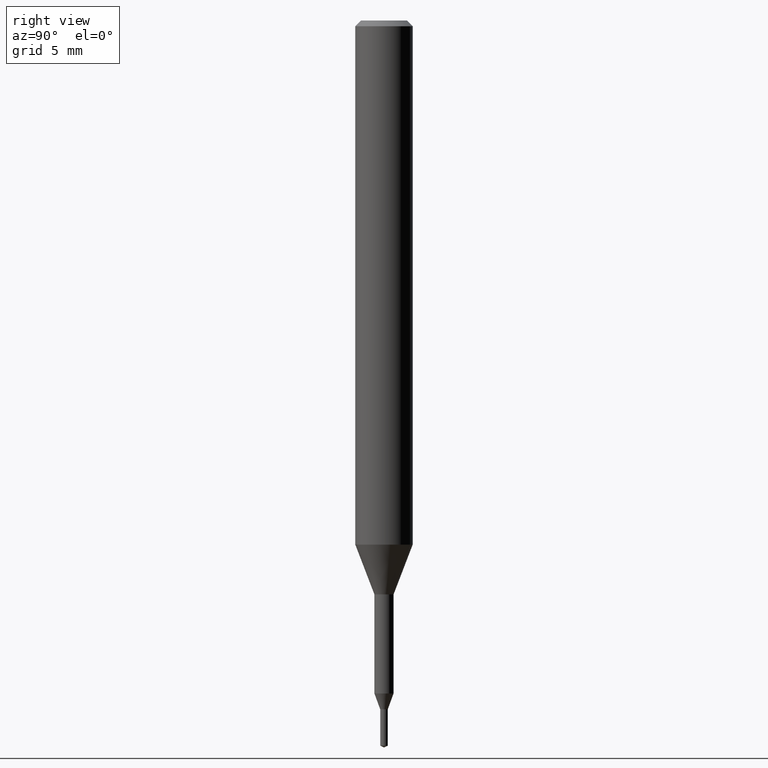
[diagram: clean part render]
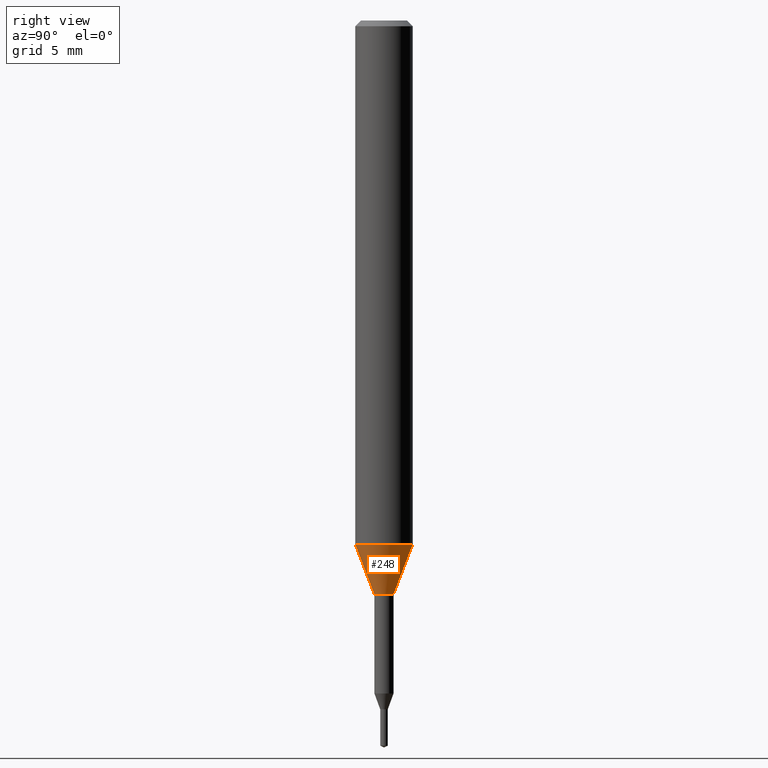
[diagram: same view with one face highlighted and labeled with its STEP entity id]
A machine part, right view. The second image highlights one B-rep face of the part: STEP entity #248.
In plain terms, the highlighted conical surface has half-angle 21.001 deg.
Its self-contained STEP definition (entity closure, byte-faithful):
#116=VERTEX_POINT('',#294);
#120=VERTEX_POINT('',#299);
#128=EDGE_CURVE('',#176,#116,#309,.T.);
#166=EDGE_CURVE('',#176,#120,#350,.T.);
#176=VERTEX_POINT('',#361);
#218=EDGE_CURVE('',#120,#260,#409,.T.);
#248=ADVANCED_FACE('',(#443),#444,.T.);
#260=VERTEX_POINT('',#458);
#266=EDGE_CURVE('',#260,#116,#464,.T.);
#294=CARTESIAN_POINT('',(1.83690953073357E-016,-1.5,-27.395));
#299=CARTESIAN_POINT('',(0.0,0.5,-30.0));
#309=CIRCLE('',#501,1.5);
#350=LINE('',#555,#556);
#361=CARTESIAN_POINT('',(0.0,1.5,-27.395));
#409=CIRCLE('',#634,0.5);
#443=FACE_OUTER_BOUND('',#678,.T.);
#444=CONICAL_SURFACE('',#679,1.0,0.366530581623394);
#458=CARTESIAN_POINT('',(6.12303176911189E-017,-0.5,-30.0));
#464=LINE('',#704,#705);
#501=AXIS2_PLACEMENT_3D('',#743,#744,#745);
#555=CARTESIAN_POINT('',(-1.22460635382238E-016,1.0,-28.6975));
#556=VECTOR('',#788,1.0);
#634=AXIS2_PLACEMENT_3D('',#859,#860,#861);
#678=EDGE_LOOP('',(#906,#907,#908,#909));
#679=AXIS2_PLACEMENT_3D('',#910,#911,#912);
#704=CARTESIAN_POINT('',(1.22460635382238E-016,-1.0,-28.6975));
#705=VECTOR('',#936,1.0);
#743=CARTESIAN_POINT('',(0.0,0.0,-27.395));
#744=DIRECTION('',(0.0,0.0,-1.0));
#745=DIRECTION('',(0.0,1.0,0.0));
#788=DIRECTION('',(4.38872745501645E-017,-0.35837862847256,-0.933576327171018));
#859=CARTESIAN_POINT('',(0.0,0.0,-30.0));
#860=DIRECTION('',(0.0,0.0,-1.0));
#861=DIRECTION('',(0.0,1.0,0.0));
#906=ORIENTED_EDGE('',*,*,#166,.F.);
#907=ORIENTED_EDGE('',*,*,#128,.T.);
#908=ORIENTED_EDGE('',*,*,#266,.F.);
#909=ORIENTED_EDGE('',*,*,#218,.F.);
#910=CARTESIAN_POINT('',(0.0,0.0,-28.6975));
#911=DIRECTION('',(-0.0,-0.0,1.0));
#912=DIRECTION('',(0.0,1.0,0.0));
#936=DIRECTION('',(4.38872745501645E-017,-0.35837862847256,0.933576327171018));